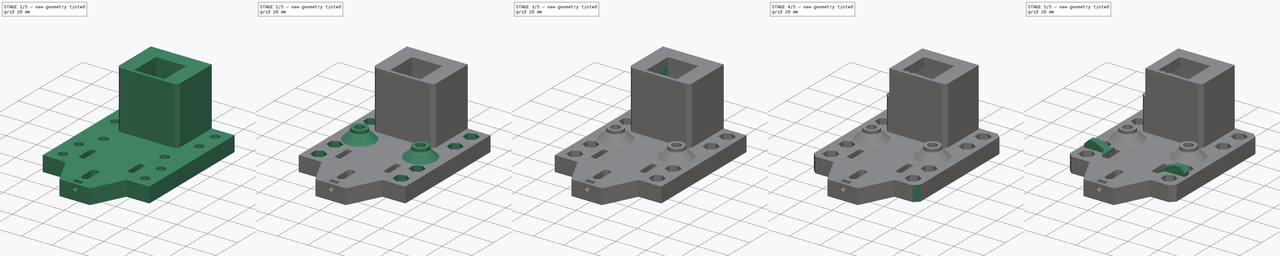
[diagram: build sequence overview — one tinted view per stage of 5, left to right]
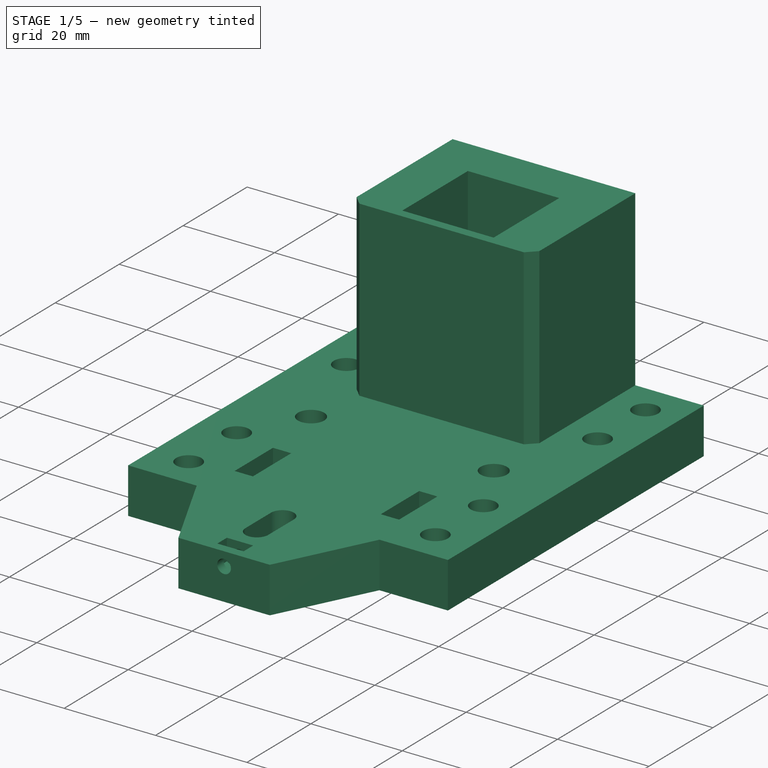
[diagram: stage 1 of 5 — iso view after this stage's code; geometry added in this stage tinted green]
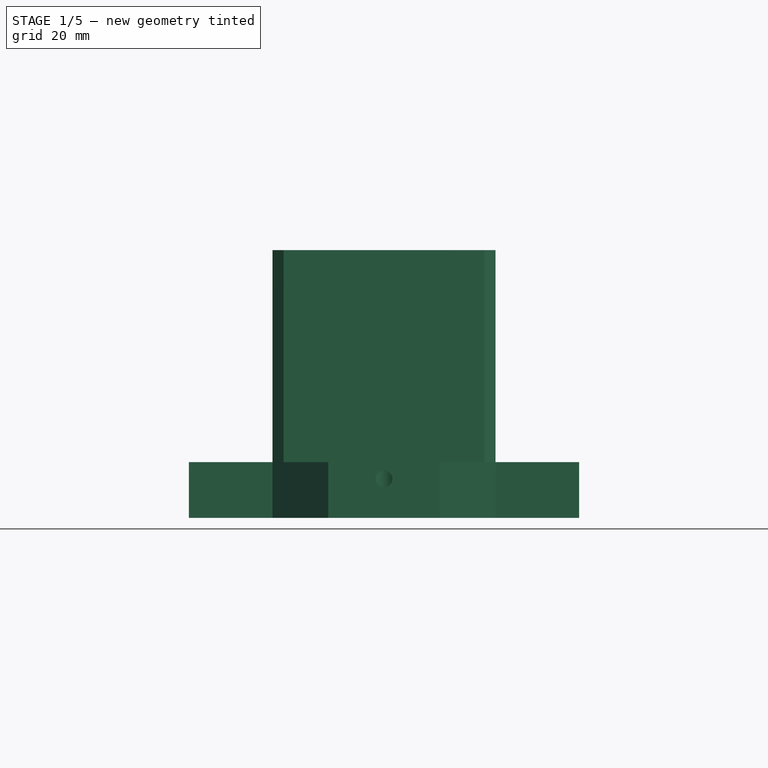
[diagram: stage 1 of 5 — front view after this stage's code; geometry added in this stage tinted green]
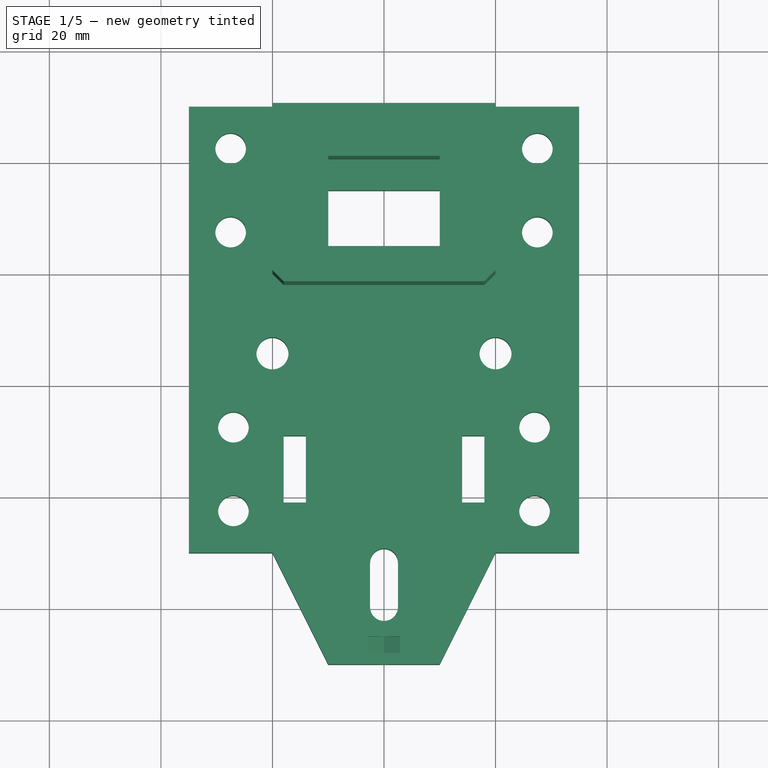
[diagram: stage 1 of 5 — top view after this stage's code; geometry added in this stage tinted green]
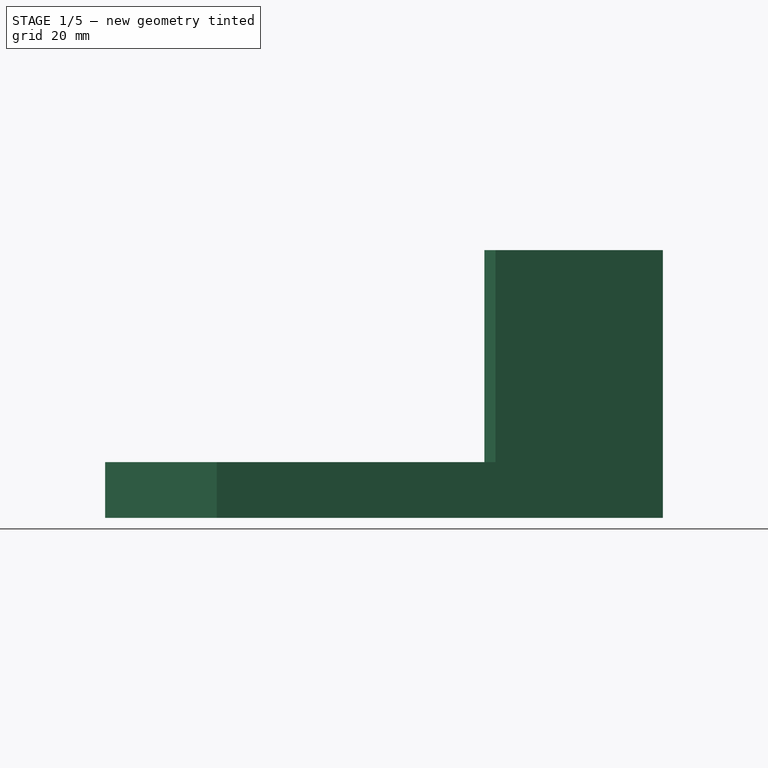
[diagram: stage 1 of 5 — right view after this stage's code; geometry added in this stage tinted green]
FCSTD DOCUMENT  (FreeCAD 0.19R24291 (Git))
Label: FDM-0005_y-gantry
License: All rights reserved
LicenseURL: http://en.wikipedia.org/wiki/All_rights_reserved
objects: Sketcher::SketchObject×13, PartDesign::Pocket×9, PartDesign::Plane×6, PartDesign::Chamfer×6, PartDesign::Pad×5, PartDesign::Fillet×2, Part::Part2DObjectPython×1, PartDesign::Body×1
note: 65 computed .brp shape members not serialized (recipe doc carries the construction recipe); baked Part::Feature solids carry a one-line shape summary decoded from their .brp

FEATURE [Sketcher::SketchObject] Sketch
  FullyConstrained = true
  MapMode = 5
  Support = -> [XY_Plane]
  sketch-geometry (47):
    g0: LineSegment StartX=-10 StartY=-70 StartZ=0 EndX=10 EndY=-70 EndZ=0
    g1: LineSegment StartX=35 StartY=-50 StartZ=0 EndX=35 EndY=30 EndZ=0
    g2: LineSegment StartX=35 StartY=30 StartZ=0 EndX=-35 EndY=30 EndZ=0
    g3: LineSegment StartX=-35 StartY=30 StartZ=0 EndX=-35 EndY=-50 EndZ=0
    g4: LineSegment StartX=-20 StartY=-14.25 StartZ=0 EndX=20 EndY=-14.25 EndZ=0
    g5: LineSegment StartX=0 StartY=0 StartZ=0 EndX=0 EndY=-70 EndZ=0
    g6: Circle CenterX=-20 CenterY=-14.25 CenterZ=0 NormalX=0 NormalY=0 NormalZ=1 AngleXU=0 Radius=2.875
    g7: Circle CenterX=20 CenterY=-14.25 CenterZ=0 NormalX=0 NormalY=0 NormalZ=1 AngleXU=0 Radius=2.875
    g8: Circle CenterX=-20 CenterY=-14.25 CenterZ=0 NormalX=0 NormalY=0 NormalZ=1 AngleXU=0 Radius=12.5
    g9: Circle CenterX=20 CenterY=-14.25 CenterZ=0 NormalX=0 NormalY=0 NormalZ=1 AngleXU=0 Radius=12.5
    g10: ArcOfCircle CenterX=0 CenterY=-51.75 CenterZ=0 NormalX=0 NormalY=0 NormalZ=1 AngleXU=0 Radius=2.5 StartAngle=6.28319 EndAngle=9.42478
    g11: ArcOfCircle CenterX=-1.7e-15 CenterY=-59.75 CenterZ=0 NormalX=0 NormalY=0 NormalZ=1 AngleXU=0 Radius=2.5 StartAngle=3.14159 EndAngle=6.28319
    g12: LineSegment StartX=-2.5 StartY=-51.75 StartZ=0 EndX=-2.5 EndY=-59.75 EndZ=0
    g13: LineSegment StartX=2.5 StartY=-51.75 StartZ=0 EndX=2.5 EndY=-59.75 EndZ=0
    g14: LineSegment StartX=-2.5 StartY=-55.75 StartZ=0 EndX=2.5 EndY=-55.75 EndZ=0
    g15: Circle CenterX=0 CenterY=-55.75 CenterZ=0 NormalX=0 NormalY=0 NormalZ=1 AngleXU=0 Radius=12.5
    g16: LineSegment StartX=-20 StartY=-50 StartZ=0 EndX=-10 EndY=-70 EndZ=0
    g17: LineSegment StartX=10 StartY=-70 StartZ=0 EndX=20 EndY=-50 EndZ=0
    g18: LineSegment StartX=-20 StartY=-50 StartZ=0 EndX=-35 EndY=-50 EndZ=0
    g19: LineSegment StartX=-27 StartY=-27.5 StartZ=0 EndX=-27 EndY=-42.5 EndZ=0
    g20: LineSegment StartX=-27 StartY=-35 StartZ=0 EndX=0 EndY=-35 EndZ=0
    g21: GeomPoint X=0 Y=-14.25 Z=0
    g22: Circle CenterX=-27 CenterY=-27.5 CenterZ=0 NormalX=0 NormalY=0 NormalZ=1 AngleXU=0 Radius=2.75
    g23: Circle CenterX=-27 CenterY=-42.5 CenterZ=0 NormalX=0 NormalY=0 NormalZ=1 AngleXU=0 Radius=2.75
    g24: LineSegment StartX=-18 StartY=-29 StartZ=0 EndX=-14 EndY=-29 EndZ=0
    g25: LineSegment StartX=-14 StartY=-29 StartZ=0 EndX=-14 EndY=-41 EndZ=0
    g26: LineSegment StartX=-14 StartY=-41 StartZ=0 EndX=-18 EndY=-41 EndZ=0
    g27: LineSegment StartX=-18 StartY=-41 StartZ=0 EndX=-18 EndY=-29 EndZ=0
    g28: LineSegment StartX=20 StartY=-50 StartZ=0 EndX=35 EndY=-50 EndZ=0
    g29: LineSegment StartX=18 StartY=-29 StartZ=0 EndX=14 EndY=-29 EndZ=0
    g30: LineSegment StartX=14 StartY=-29 StartZ=0 EndX=14 EndY=-41 EndZ=0
    g31: LineSegment StartX=14 StartY=-41 StartZ=0 EndX=18 EndY=-41 EndZ=0
    g32: Circle CenterX=27 CenterY=-42.5 CenterZ=0 NormalX=0 NormalY=0 NormalZ=1 AngleXU=0 Radius=2.75
    g33: Circle CenterX=27 CenterY=-27.5 CenterZ=0 NormalX=0 NormalY=0 NormalZ=1 AngleXU=0 Radius=2.75
    g34: LineSegment StartX=18 StartY=-41 StartZ=0 EndX=18 EndY=-29 EndZ=0
    g35: LineSegment StartX=27 StartY=-27.5 StartZ=0 EndX=27 EndY=-42.5 EndZ=0
    g36: LineSegment StartX=0 StartY=-35 StartZ=0 EndX=27 EndY=-35 EndZ=0
    g37: LineSegment StartX=-27.5 StartY=0 StartZ=0 EndX=-27.5 EndY=30 EndZ=0
    g38: LineSegment StartX=27.5 StartY=0 StartZ=0 EndX=27.5 EndY=30 EndZ=0
    g39: Circle CenterX=-27.5 CenterY=22.5 CenterZ=0 NormalX=0 NormalY=0 NormalZ=1 AngleXU=0 Radius=2.75
    g40: Circle CenterX=-27.5 CenterY=7.5 CenterZ=0 NormalX=0 NormalY=0 NormalZ=1 AngleXU=0 Radius=2.75
    g41: Circle CenterX=27.5 CenterY=22.5 CenterZ=0 NormalX=0 NormalY=0 NormalZ=1 AngleXU=0 Radius=2.75
    g42: Circle CenterX=27.5 CenterY=7.5 CenterZ=0 NormalX=0 NormalY=0 NormalZ=1 AngleXU=0 Radius=2.75
    g43: LineSegment StartX=-10 StartY=5 StartZ=0 EndX=10 EndY=5 EndZ=0
    g44: LineSegment StartX=10 StartY=5 StartZ=0 EndX=10 EndY=15 EndZ=0
    g45: LineSegment StartX=10 StartY=15 StartZ=0 EndX=-10 EndY=15 EndZ=0
    g46: LineSegment StartX=-10 StartY=15 StartZ=0 EndX=-10 EndY=5 EndZ=0
  constraints (131):
    c: Coincident(g1,g2)
    c: Coincident(g2,g3)
    c: Vertical(g1)
    c: Vertical(g3)
    c: Symmetric(g2,g1,g-2)
    c: Distance(g2) = 70
    c: Distance(g-1,g2) = 30
    c: Distance(g-1,g0) = 70
    c: Coincident(g5,g-1)
    c: PointOnObject(g5,g0)
    c: Coincident(g6,g4)
    c: Coincident(g7,g4)
    c: Coincident(g8,g6)
    c: Coincident(g9,g7)
    c: Diameter(g8) = 25
    c: Diameter(g9) = 25
    c: Diameter(g6) = 5.75
    c: Diameter(g7) = 5.75
    c: Coincident(g12,g10)
    c: Coincident(g12,g11)
    c: Vertical(g12)
    c: Coincident(g13,g10)
    c: Coincident(g13,g11)
    c: Vertical(g13)
    c: PointOnObject(g14,g12)
    c: PointOnObject(g14,g13)
    c: Symmetric(g10,g11,g14)
    c: Tangent(g12,g10)
    c: Tangent(g13,g10)
    c: Tangent(g11,g12)
    c: Tangent(g11,g13)
    c: Diameter(g10) = 5
    c: Distance(g13) = 8
    c: PointOnObject(g10,g5)
    c: Diameter(g15) = 25
    c: PointOnObject(g15,g5)
    c: Coincident(g0,g16)
    c: Coincident(g0,g17)
    c: DistanceX(g0,g0) = 20
    c: Symmetric(g0,g0,g5)
    c: Perpendicular(g4,g5)
    c: PointOnObject(g15,g14)
    c: Distance(g15,g4) = 41.5
    c: Distance(g-1,g4) = 14.25
    c: DistanceX(g4,g4) = 40
    c: Symmetric(g6,g7,g-2)
    c: Horizontal(g18)
    c: Coincident(g16,g18)
    c: Coincident(g18,g3)
    c: Vertical(g19)
    c: PointOnObject(g20,g19)
    c: PointOnObject(g20,g5)
    c: Symmetric(g19,g19,g20)
    c: Distance(g19) = 15
    c: PointOnObject(g21,g4)
    c: Symmetric(g21,g15,g20)
    c: DistanceX(g20,g20) = 27
    c: Coincident(g22,g19)
    c: Coincident(g23,g19)
    c: Coincident(g24,g25)
    c: Coincident(g25,g26)
    c: Coincident(g26,g27)
    c: Coincident(g27,g24)
    c: Horizontal(g24)
    c: Horizontal(g26)
    c: Vertical(g25)
    c: Distance(g26) = 4
    c: Distance(g27) = 12
    c: Symmetric(g24,g26,g20)
    c: Distance(g24,g3) = 17
    c: Diameter(g22) = 5.5
    c: Diameter(g23) = 5.5
    c: Distance(g-1,g18) = 50
    c: DistanceX(g16,g-1) = 20
    c: Horizontal(g28)
    c: Coincident(g17,g28)
    c: Coincident(g28,g1)
    c: PointOnObject(g17,g18)
    c: DistanceX(g-1,g17) = 20
    c: Coincident(g29,g30)
    c: Coincident(g30,g31)
    c: Horizontal(g29)
    c: Horizontal(g31)
    c: Vertical(g30)
    c: Distance(g31) = 4
    c: Diameter(g33) = 5.5
    c: Diameter(g32) = 5.5
    c: Distance(g34) = 12
    c: Coincident(g35,g33)
    c: Coincident(g35,g32)
    c: Coincident(g36,g20)
    c: PointOnObject(g36,g35)
    c: Symmetric(g33,g32,g36)
    c: Distance(g20,g35) = 27
    c: Distance(g29,g1) = 17
    c: Distance(g35) = 15
    c: Symmetric(g30,g29,g36)
    c: Coincident(g34,g29)
    c: Coincident(g31,g34)
    c: Vertical(g34)
    c: PointOnObject(g37,g-1)
    c: PointOnObject(g37,g2)
    c: Vertical(g37)
    c: PointOnObject(g38,g-1)
    c: PointOnObject(g38,g2)
    c: Vertical(g38)
    c: Distance(g37,g3) = 7.5
    c: Distance(g38,g1) = 7.5
    c: PointOnObject(g39,g37)
    c: PointOnObject(g40,g37)
    c: PointOnObject(g41,g38)
    c: PointOnObject(g42,g38)
    c: Diameter(g39) = 5.5
    c: Diameter(g40) = 5.5
    c: Diameter(g41) = 5.5
    c: Diameter(g42) = 5.5
    c: Distance(g39,g2) = 7.5
    c: Distance(g40,g37) = 7.5
    c: Distance(g42,g38) = 7.5
    c: Distance(g41,g2) = 7.5
    c: Coincident(g43,g44)
    c: Coincident(g44,g45)
    c: Coincident(g45,g46)
    c: Coincident(g46,g43)
    c: Horizontal(g43)
    c: Vertical(g44)
    c: Vertical(g46)
    c: Distance(g45) = 20
    c: Distance(g44) = 10
    c: Symmetric(g45,g44,g-2)
    c: Distance(g-1,g43) = 5
FEATURE [PartDesign::Pad] Pad
  AllowMultiFace = false
  Direction = (1,1,1)
  Length = 10
  Length2 = 100
  Profile = -> Sketch
  Type = 0
FEATURE [PartDesign::Plane] DatumPlane
  Length = 86.7332
  MapMode = 5
  Placement = pos=(0,0,10) rot=(0,0,1;0rad)
  ResizeMode = 0
  Support = -> [Pad]
  Width = 116.733
FEATURE [Sketcher::SketchObject] Sketch001
  FullyConstrained = true
  MapMode = 5
  Placement = pos=(0,0,10) rot=(0,0,1;0rad)
  Support = -> [DatumPlane]
  sketch-geometry (10):
    g0: LineSegment StartX=-10 StartY=0 StartZ=0 EndX=-10 EndY=20.5 EndZ=0
    g1: LineSegment StartX=-10 StartY=20.5 StartZ=0 EndX=10 EndY=20.5 EndZ=0
    g2: LineSegment StartX=10 StartY=20.5 StartZ=0 EndX=10 EndY=0 EndZ=0
    g3: LineSegment StartX=20 StartY=0 StartZ=0 EndX=20 EndY=30 EndZ=0
    g4: LineSegment StartX=20 StartY=30 StartZ=0 EndX=-20 EndY=30 EndZ=0
    g5: LineSegment StartX=-20 StartY=30 StartZ=0 EndX=-20 EndY=0 EndZ=0
    g6: LineSegment StartX=-20 StartY=0 StartZ=0 EndX=-18 EndY=-2 EndZ=0
    g7: LineSegment StartX=-18 StartY=-2 StartZ=0 EndX=18 EndY=-2 EndZ=0
    g8: LineSegment StartX=18 StartY=-2 StartZ=0 EndX=20 EndY=0 EndZ=0
    g9: LineSegment StartX=-10 StartY=0 StartZ=0 EndX=10 EndY=0 EndZ=0
  constraints (30):
    c: PointOnObject(g0,g-1)
    c: Vertical(g0)
    c: Coincident(g0,g1)
    c: Horizontal(g1)
    c: Coincident(g1,g2)
    c: PointOnObject(g2,g-1)
    c: Vertical(g2)
    c: PointOnObject(g3,g-1)
    c: Vertical(g3)
    c: Coincident(g3,g4)
    c: Horizontal(g4)
    c: Coincident(g4,g5)
    c: PointOnObject(g5,g-1)
    c: Vertical(g5)
    c: Distance(g-1,g4) = 30
    c: Distance(g-1,g1) = 20.5
    c: Distance(g-1,g3) = 20
    c: Distance(g5,g-1) = 20
    c: Distance(g-1,g2) = 10
    c: Distance(g-1,g0) = 10
    c: Coincident(g5,g6)
    c: Coincident(g6,g7)
    c: Horizontal(g7)
    c: Coincident(g7,g8)
    c: Coincident(g9,g0)
    c: Coincident(g9,g2)
    c: Angle(g6,g5) = 2.35619
    c: Angle(g3,g8) = 2.35619
    c: DistanceY(g6,g0) = 2
    c: Coincident(g8,g3)
FEATURE [PartDesign::Pad] Pad001
  AllowMultiFace = false
  BaseFeature = -> Pad
  Direction = (1,1,1)
  Length = 38
  Length2 = 100
  Profile = -> Sketch001
  Type = 0
FEATURE [Sketcher::SketchObject] Sketch002
  FullyConstrained = true
  MapMode = 5
  Placement = pos=(0,-70,0) rot=(1,0,0;1.5708rad)
  Support = -> [Pad001]
  sketch-geometry (1):
    g0: Circle CenterX=0 CenterY=7 CenterZ=0 NormalX=0 NormalY=0 NormalZ=1 AngleXU=0 Radius=1.5
  constraints (3):
    c: PointOnObject(g0,g-2)
    c: Diameter(g0) = 3
    c: Distance(g0,g-1) = 7
FEATURE [PartDesign::Pocket] Pocket
  AllowMultiFace = false
  BaseFeature = -> Pad001
  Length = 10
  Length2 = 100
  Profile = -> Sketch002
  Type = 0
FEATURE [PartDesign::Plane] DatumPlane001
  AttachmentOffset = pos=(0,0,-2) rot=(0,0,1;0rad)
  Length = 84.2969
  MapMode = 5
  Placement = pos=(0,-68,-4e-16) rot=(1,0,0;1.5708rad)
  ResizeMode = 0
  Support = -> [Pocket]
  Width = 87.2969
FEATURE [Sketcher::SketchObject] Sketch003
  FullyConstrained = true
  MapMode = 5
  Placement = pos=(0,-68,-4e-16) rot=(1,0,0;1.5708rad)
  Support = -> [DatumPlane001]
  sketch-geometry (10):
    g0: LineSegment StartX=3.42e-14 StartY=3.68024 StartZ=0 EndX=2.875 EndY=5.34012 EndZ=0
    g1: LineSegment StartX=2.875 StartY=5.34012 StartZ=0 EndX=2.875 EndY=8.65988 EndZ=0
    g2: LineSegment StartX=2.875 StartY=8.65988 StartZ=0 EndX=-3.6e-15 EndY=10.3198 EndZ=0
    g3: LineSegment StartX=-3.6e-15 StartY=10.3198 StartZ=0 EndX=-2.875 EndY=8.65988 EndZ=0
    g4: LineSegment StartX=-2.875 StartY=8.65988 StartZ=0 EndX=-2.875 EndY=5.34012 EndZ=0
    g5: LineSegment StartX=-2.875 StartY=5.34012 StartZ=0 EndX=3.42e-14 EndY=3.68024 EndZ=0
    g6: Circle CenterX=0 CenterY=7 CenterZ=0 NormalX=0 NormalY=0 NormalZ=1 AngleXU=0 Radius=3.31976
    g7: LineSegment StartX=-2.875 StartY=8.65988 StartZ=0 EndX=-2.875 EndY=12 EndZ=0
    g8: LineSegment StartX=-2.875 StartY=12 StartZ=0 EndX=2.875 EndY=12 EndZ=0
    g9: LineSegment StartX=2.875 StartY=12 StartZ=0 EndX=2.875 EndY=8.65988 EndZ=0
  constraints (25):
    c: Coincident(g0,g1)
    c: Coincident(g1,g2)
    c: Coincident(g2,g3)
    c: Coincident(g3,g4)
    c: Coincident(g4,g5)
    c: Coincident(g5,g0)
    c: Equal(g0, g1-g5) x5
    c: PointOnObject(g0,g6)
    c: PointOnObject(g1,g6)
    c: PointOnObject(g2,g6)
    c: PointOnObject(g3,g6)
    c: PointOnObject(g4,g6)
    c: PointOnObject(g5,g6)
    c: Vertical(g1)
    c: DistanceX(g4,g0) = 5.75
    c: DistanceY(g-1,g6) = 7
    c: Coincident(g3,g7)
    c: Vertical(g7)
    c: Coincident(g7,g8)
    c: Horizontal(g8)
    c: Coincident(g8,g9)
    c: Coincident(g9,g1)
    c: Vertical(g9)
    c: DistanceY(g-1,g8) = 12
    c: PointOnObject(g6,g-2)
FEATURE [PartDesign::Pocket] Pocket001
  AllowMultiFace = false
  BaseFeature = -> Pocket
  Length = 3
  Length2 = 100
  Profile = -> Sketch003
  Type = 0
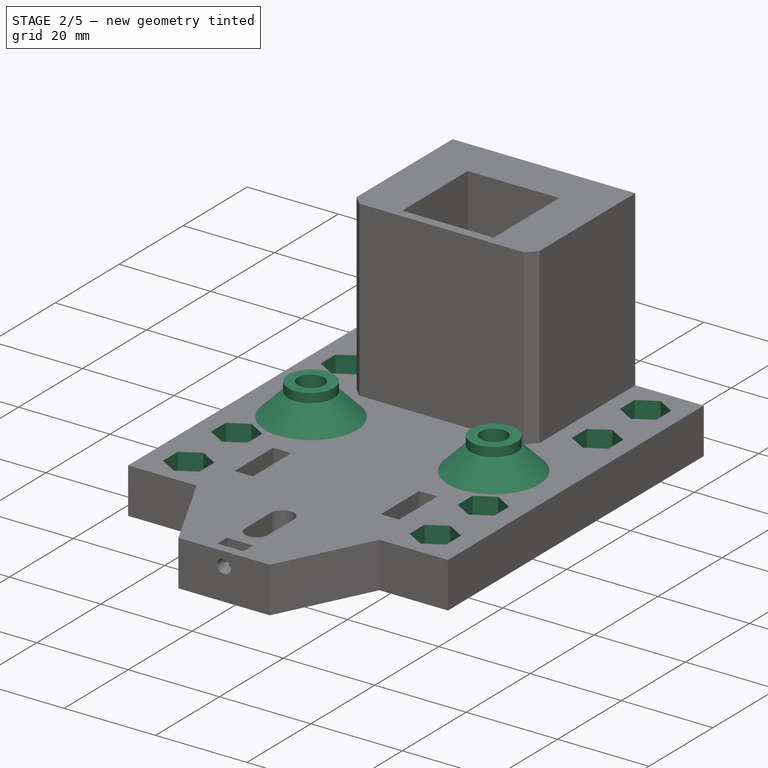
[diagram: stage 2 of 5 — iso view after this stage's code; geometry added in this stage tinted green]
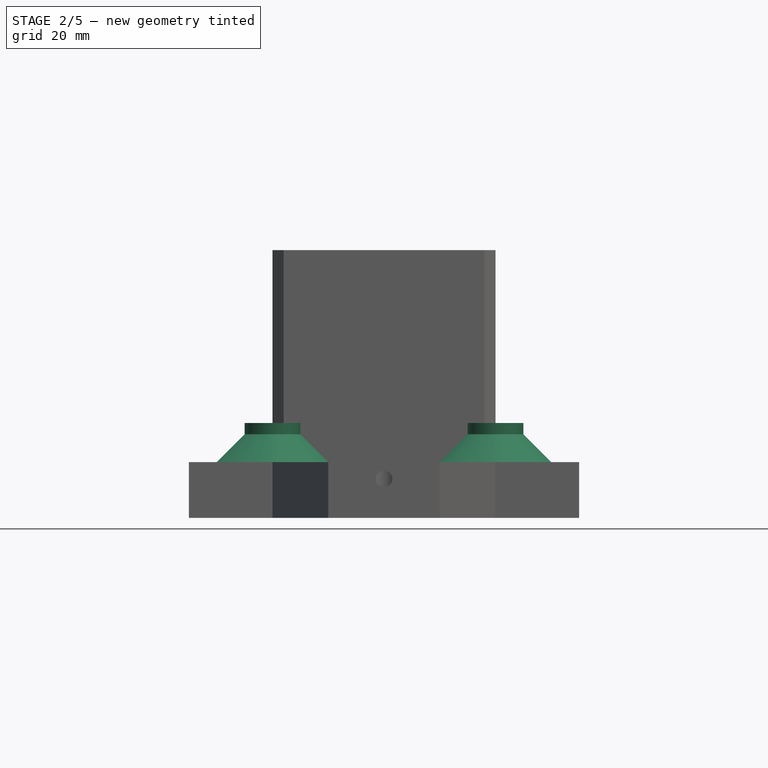
[diagram: stage 2 of 5 — front view after this stage's code; geometry added in this stage tinted green]
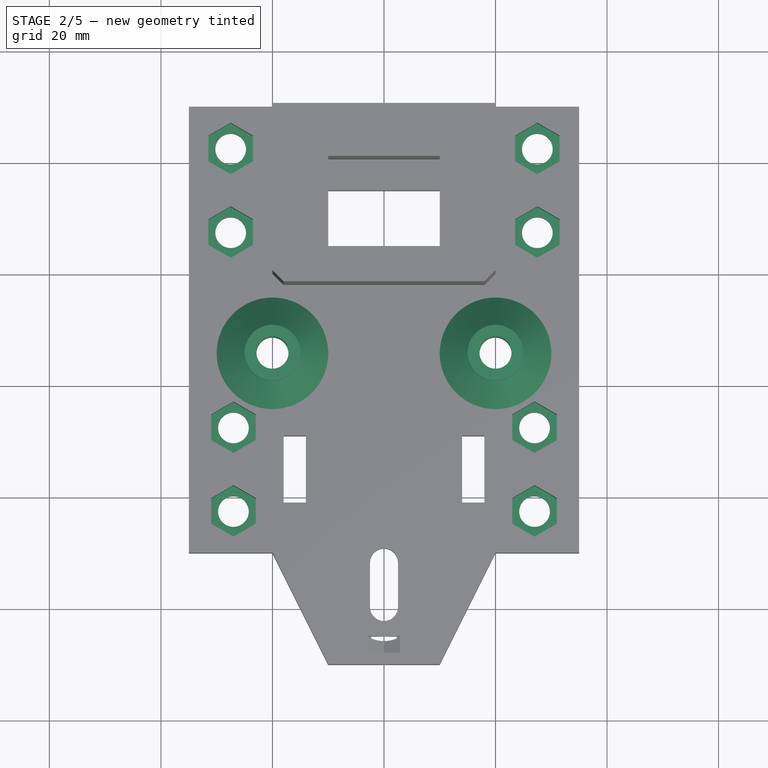
[diagram: stage 2 of 5 — top view after this stage's code; geometry added in this stage tinted green]
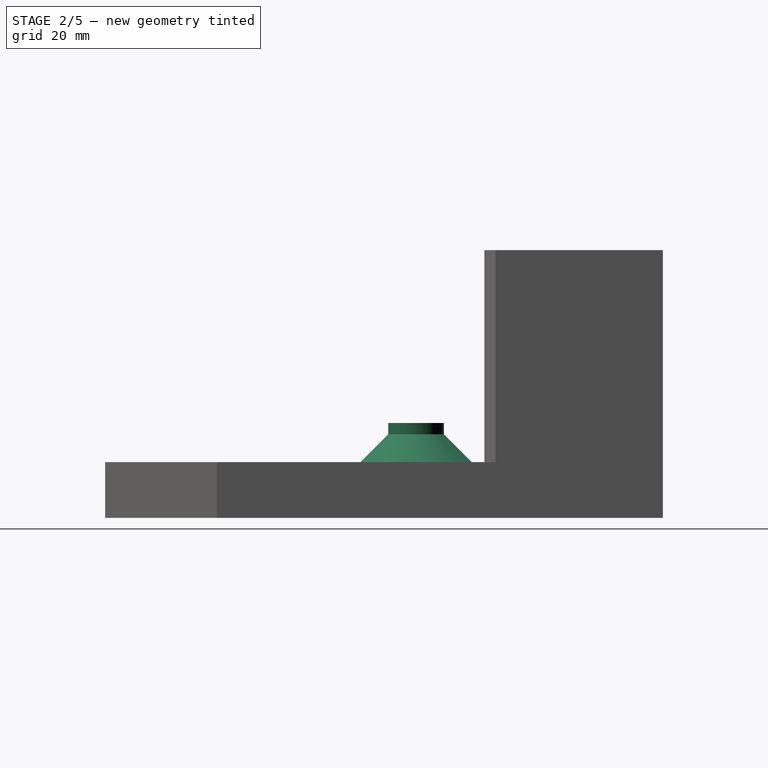
[diagram: stage 2 of 5 — right view after this stage's code; geometry added in this stage tinted green]
FEATURE [PartDesign::Plane] DatumPlane002
  Length = 86.7332
  MapMode = 5
  Placement = pos=(0,0,10) rot=(0,0,1;0rad)
  ResizeMode = 0
  Support = -> [Pocket001]
  Width = 116.733
FEATURE [Sketcher::SketchObject] Sketch004
  FullyConstrained = true
  MapMode = 5
  Placement = pos=(0,0,10) rot=(0,0,1;0rad)
  Support = -> [DatumPlane002]
  sketch-geometry (64):
    g0: LineSegment StartX=-27.5 StartY=17.8812 StartZ=0 EndX=-23.5 EndY=20.1906 EndZ=0
    g1: LineSegment StartX=-23.5 StartY=20.1906 StartZ=0 EndX=-23.5 EndY=24.8094 EndZ=0
    g2: LineSegment StartX=-23.5 StartY=24.8094 StartZ=0 EndX=-27.5 EndY=27.1188 EndZ=0
    g3: LineSegment StartX=-27.5 StartY=27.1188 StartZ=0 EndX=-31.5 EndY=24.8094 EndZ=0
    g4: LineSegment StartX=-31.5 StartY=24.8094 StartZ=0 EndX=-31.5 EndY=20.1906 EndZ=0
    g5: LineSegment StartX=-31.5 StartY=20.1906 StartZ=0 EndX=-27.5 EndY=17.8812 EndZ=0
    g6: Circle CenterX=-27.5 CenterY=22.5 CenterZ=0 NormalX=0 NormalY=0 NormalZ=1 AngleXU=0 Radius=4.6188
    g7: LineSegment StartX=27.5 StartY=17.8812 StartZ=0 EndX=31.5 EndY=20.1906 EndZ=0
    g8: LineSegment StartX=31.5 StartY=20.1906 StartZ=0 EndX=31.5 EndY=24.8094 EndZ=0
    g9: LineSegment StartX=31.5 StartY=24.8094 StartZ=0 EndX=27.5 EndY=27.1188 EndZ=0
    g10: LineSegment StartX=27.5 StartY=27.1188 StartZ=0 EndX=23.5 EndY=24.8094 EndZ=0
    g11: LineSegment StartX=23.5 StartY=24.8094 StartZ=0 EndX=23.5 EndY=20.1906 EndZ=0
    g12: LineSegment StartX=23.5 StartY=20.1906 StartZ=0 EndX=27.5 EndY=17.8812 EndZ=0
    g13: Circle CenterX=27.5 CenterY=22.5 CenterZ=0 NormalX=0 NormalY=0 NormalZ=1 AngleXU=0 Radius=4.6188
    g14: LineSegment StartX=27.5 StartY=2.8812 StartZ=0 EndX=31.5 EndY=5.1906 EndZ=0
    g15: LineSegment StartX=31.5 StartY=5.1906 StartZ=0 EndX=31.5 EndY=9.8094 EndZ=0
    g16: LineSegment StartX=31.5 StartY=9.8094 StartZ=0 EndX=27.5 EndY=12.1188 EndZ=0
    g17: LineSegment StartX=27.5 StartY=12.1188 StartZ=0 EndX=23.5 EndY=9.8094 EndZ=0
    g18: LineSegment StartX=23.5 StartY=9.8094 StartZ=0 EndX=23.5 EndY=5.1906 EndZ=0
    g19: LineSegment StartX=23.5 StartY=5.1906 StartZ=0 EndX=27.5 EndY=2.8812 EndZ=0
    g20: Circle CenterX=27.5 CenterY=7.5 CenterZ=0 NormalX=0 NormalY=0 NormalZ=1 AngleXU=0 Radius=4.6188
    g21: LineSegment StartX=-27 StartY=-32.1188 StartZ=0 EndX=-23 EndY=-29.8094 EndZ=0
    g22: LineSegment StartX=-23 StartY=-29.8094 StartZ=0 EndX=-23 EndY=-25.1906 EndZ=0
    g23: LineSegment StartX=-23 StartY=-25.1906 StartZ=0 EndX=-27 EndY=-22.8812 EndZ=0
    g24: LineSegment StartX=-27 StartY=-22.8812 StartZ=0 EndX=-31 EndY=-25.1906 EndZ=0
    g25: LineSegment StartX=-31 StartY=-25.1906 StartZ=0 EndX=-31 EndY=-29.8094 EndZ=0
    g26: LineSegment StartX=-31 StartY=-29.8094 StartZ=0 EndX=-27 EndY=-32.1188 EndZ=0
    g27: Circle CenterX=-27 CenterY=-27.5 CenterZ=0 NormalX=0 NormalY=0 NormalZ=1 AngleXU=0 Radius=4.6188
    g28: LineSegment StartX=-27 StartY=-47.1188 StartZ=0 EndX=-23 EndY=-44.8094 EndZ=0
    g29: LineSegment StartX=-23 StartY=-44.8094 StartZ=0 EndX=-23 EndY=-40.1906 EndZ=0
    g30: LineSegment StartX=-23 StartY=-40.1906 StartZ=0 EndX=-27 EndY=-37.8812 EndZ=0
    g31: LineSegment StartX=-27 StartY=-37.8812 StartZ=0 EndX=-31 EndY=-40.1906 EndZ=0
    g32: LineSegment StartX=-31 StartY=-40.1906 StartZ=0 EndX=-31 EndY=-44.8094 EndZ=0
    g33: LineSegment StartX=-31 StartY=-44.8094 StartZ=0 EndX=-27 EndY=-47.1188 EndZ=0
    g34: Circle CenterX=-27 CenterY=-42.5 CenterZ=0 NormalX=0 NormalY=0 NormalZ=1 AngleXU=0 Radius=4.6188
    g35: LineSegment StartX=27 StartY=-32.1188 StartZ=0 EndX=31 EndY=-29.8094 EndZ=0
    g36: LineSegment StartX=31 StartY=-29.8094 StartZ=0 EndX=31 EndY=-25.1906 EndZ=0
    g37: LineSegment StartX=31 StartY=-25.1906 StartZ=0 EndX=27 EndY=-22.8812 EndZ=0
    g38: LineSegment StartX=27 StartY=-22.8812 StartZ=0 EndX=23 EndY=-25.1906 EndZ=0
    g39: LineSegment StartX=23 StartY=-25.1906 StartZ=0 EndX=23 EndY=-29.8094 EndZ=0
    g40: LineSegment StartX=23 StartY=-29.8094 StartZ=0 EndX=27 EndY=-32.1188 EndZ=0
    g41: Circle CenterX=27 CenterY=-27.5 CenterZ=0 NormalX=0 NormalY=0 NormalZ=1 AngleXU=0 Radius=4.6188
    g42: LineSegment StartX=-23.5 StartY=5.1906 StartZ=0 EndX=-23.5 EndY=9.8094 EndZ=0
    g43: LineSegment StartX=-23.5 StartY=9.8094 StartZ=0 EndX=-27.5 EndY=12.1188 EndZ=0
    g44: LineSegment StartX=-27.5 StartY=12.1188 StartZ=0 EndX=-31.5 EndY=9.8094 EndZ=0
    g45: LineSegment StartX=-31.5 StartY=9.8094 StartZ=0 EndX=-31.5 EndY=5.1906 EndZ=0
    g46: LineSegment StartX=-31.5 StartY=5.1906 StartZ=0 EndX=-27.5 EndY=2.8812 EndZ=0
    g47: LineSegment StartX=-27.5 StartY=2.8812 StartZ=0 EndX=-23.5 EndY=5.1906 EndZ=0
    g48: Circle CenterX=-27.5 CenterY=7.5 CenterZ=0 NormalX=0 NormalY=0 NormalZ=1 AngleXU=0 Radius=4.6188
    g49: LineSegment StartX=31 StartY=-44.8094 StartZ=0 EndX=31 EndY=-40.1906 EndZ=0
    g50: LineSegment StartX=31 StartY=-40.1906 StartZ=0 EndX=27 EndY=-37.8812 EndZ=0
    g51: LineSegment StartX=27 StartY=-37.8812 StartZ=0 EndX=23 EndY=-40.1906 EndZ=0
    g52: LineSegment StartX=23 StartY=-40.1906 StartZ=0 EndX=23 EndY=-44.8094 EndZ=0
    g53: LineSegment StartX=23 StartY=-44.8094 StartZ=0 EndX=27 EndY=-47.1188 EndZ=0
    g54: LineSegment StartX=27 StartY=-47.1188 StartZ=0 EndX=31 EndY=-44.8094 EndZ=0
    g55: Circle CenterX=27 CenterY=-42.5 CenterZ=0 NormalX=0 NormalY=0 NormalZ=1 AngleXU=0 Radius=4.6188
    g56: LineSegment StartX=-27 StartY=-42.5 StartZ=0 EndX=27 EndY=-42.5 EndZ=0
    g57: LineSegment StartX=27 StartY=-42.5 StartZ=0 EndX=27 EndY=-27.5 EndZ=0
    g58: LineSegment StartX=27 StartY=-27.5 StartZ=0 EndX=-27 EndY=-27.5 EndZ=0
    g59: LineSegment StartX=-27 StartY=-27.5 StartZ=0 EndX=-27 EndY=-42.5 EndZ=0
    g60: LineSegment StartX=-27.5 StartY=22.5 StartZ=0 EndX=27.5 EndY=22.5 EndZ=0
    g61: LineSegment StartX=27.5 StartY=22.5 StartZ=0 EndX=27.5 EndY=7.5 EndZ=0
    g62: LineSegment StartX=27.5 StartY=7.5 StartZ=0 EndX=-27.5 EndY=7.5 EndZ=0
    g63: LineSegment StartX=-27.5 StartY=7.5 StartZ=0 EndX=-27.5 EndY=22.5 EndZ=0
  constraints (150):
    c: Coincident(g0,g1)
    c: Coincident(g1,g2)
    c: Coincident(g2,g3)
    c: Coincident(g3,g4)
    c: Coincident(g4,g5)
    c: Coincident(g5,g0)
    c: Equal(g0, g1-g5) x5
    c: PointOnObject(g0,g6)
    c: PointOnObject(g1,g6)
    c: PointOnObject(g2,g6)
    c: PointOnObject(g3,g6)
    c: PointOnObject(g4,g6)
    c: PointOnObject(g5,g6)
    c: Coincident(g7,g8)
    c: Coincident(g8,g9)
    c: Coincident(g9,g10)
    c: Coincident(g10,g11)
    c: Coincident(g11,g12)
    c: Coincident(g12,g7)
    c: Equal(g7, g8-g12) x5
    c: PointOnObject(g7,g13)
    c: PointOnObject(g8,g13)
    c: PointOnObject(g9,g13)
    c: PointOnObject(g10,g13)
    c: PointOnObject(g11,g13)
    c: PointOnObject(g12,g13)
    c: Coincident(g14,g15)
    c: Coincident(g15,g16)
    c: Coincident(g16,g17)
    c: Coincident(g17,g18)
    c: Coincident(g18,g19)
    c: Coincident(g19,g14)
    c: Equal(g14, g15-g19) x5
    c: PointOnObject(g14,g20)
    c: PointOnObject(g15,g20)
    c: PointOnObject(g16,g20)
    c: PointOnObject(g17,g20)
    c: PointOnObject(g18,g20)
    c: PointOnObject(g19,g20)
    c: Coincident(g21,g22)
    c: Coincident(g22,g23)
    c: Coincident(g23,g24)
    c: Coincident(g24,g25)
    c: Coincident(g25,g26)
    c: Coincident(g26,g21)
    c: Equal(g21, g22-g26) x5
    c: PointOnObject(g21,g27)
    c: PointOnObject(g22,g27)
    c: PointOnObject(g23,g27)
    c: PointOnObject(g24,g27)
    c: PointOnObject(g25,g27)
    c: PointOnObject(g26,g27)
    c: Coincident(g28,g29)
    c: Coincident(g29,g30)
    c: Coincident(g30,g31)
    c: Coincident(g31,g32)
    c: Coincident(g32,g33)
    c: Coincident(g33,g28)
    c: Equal(g28, g29-g33) x5
    c: PointOnObject(g28,g34)
    c: PointOnObject(g29,g34)
    c: PointOnObject(g30,g34)
    c: PointOnObject(g31,g34)
    c: PointOnObject(g32,g34)
    c: PointOnObject(g33,g34)
    c: Coincident(g35,g36)
    c: Coincident(g36,g37)
    c: Coincident(g37,g38)
    c: Coincident(g38,g39)
    c: Coincident(g39,g40)
    c: Coincident(g40,g35)
    c: Equal(g35, g36-g40) x5
    c: PointOnObject(g35,g41)
    c: PointOnObject(g36,g41)
    c: PointOnObject(g37,g41)
    c: PointOnObject(g38,g41)
    c: PointOnObject(g39,g41)
    c: PointOnObject(g40,g41)
    c: Vertical(g4)
    c: Vertical(g11)
    c: Vertical(g18)
    c: Vertical(g25)
    c: Vertical(g32)
    c: Vertical(g39)
    c: Distance(g3,g1) = 8
    c: Distance(g10,g8) = 8
    c: Distance(g17,g15) = 8
    c: Distance(g24,g22) = 8
    c: Distance(g31,g29) = 8
    c: Distance(g38,g36) = 8
    c: Coincident(g42,g43)
    c: Coincident(g43,g44)
    c: Coincident(g44,g45)
    c: Coincident(g45,g46)
    c: Coincident(g46,g47)
    c: Coincident(g47,g42)
    c: Equal(g42, g43-g47) x5
    c: PointOnObject(g42,g48)
    c: PointOnObject(g43,g48)
    c: PointOnObject(g44,g48)
    c: PointOnObject(g45,g48)
    c: PointOnObject(g46,g48)
    c: PointOnObject(g47,g48)
    c: Coincident(g49,g50)
    c: Coincident(g50,g51)
    c: Coincident(g51,g52)
    c: Coincident(g52,g53)
    c: Coincident(g53,g54)
    c: Coincident(g54,g49)
    c: Equal(g49, g50-g54) x5
    c: PointOnObject(g49,g55)
    c: PointOnObject(g50,g55)
    c: PointOnObject(g51,g55)
    c: PointOnObject(g52,g55)
    c: PointOnObject(g53,g55)
    c: PointOnObject(g54,g55)
    c: Coincident(g56,g57)
    c: Coincident(g57,g58)
    c: Coincident(g58,g59)
    c: Coincident(g59,g56)
    c: Horizontal(g58)
    c: Vertical(g57)
    c: Vertical(g59)
    c: Coincident(g56,g34)
    c: Coincident(g57,g41)
    c: Coincident(g55,g56)
    c: Vertical(g49)
    c: Coincident(g27,g58)
    c: Symmetric(g34,g55,g-2)
    c: DistanceY(g59,g59) = 15
    c: DistanceY(g27,g-1) = 27.5
    c: DistanceX(g58,g58) = 54
    c: DistanceX(g51,g49) = 8
    c: Vertical(g42)
    c: DistanceX(g44,g42) = 8
    c: Coincident(g60,g61)
    c: Coincident(g61,g62)
    c: Coincident(g62,g63)
    c: Coincident(g63,g60)
    c: Horizontal(g60)
    c: Vertical(g61)
    c: Vertical(g63)
    c: Coincident(g60,g6)
    c: Coincident(g61,g20)
    c: Coincident(g48,g62)
    c: Coincident(g13,g60)
    c: Symmetric(g48,g20,g-2)
    c: DistanceY(g-1,g48) = 7.5
    c: DistanceY(g63,g63) = 15
    c: DistanceX(g62,g62) = 55
FEATURE [Sketcher::SketchObject] Sketch006
  FullyConstrained = true
  MapMode = 5
  Placement = pos=(0,0,10) rot=(0,0,1;0rad)
  Support = -> [DatumPlane002]
  sketch-geometry (2):
    g0: Circle CenterX=20 CenterY=-14.25 CenterZ=0 NormalX=0 NormalY=0 NormalZ=1 AngleXU=0 Radius=5
    g1: Circle CenterX=20 CenterY=-14.25 CenterZ=0 NormalX=0 NormalY=0 NormalZ=1 AngleXU=0 Radius=2.875
  constraints (5):
    c: Coincident(g1,g0)
    c: Diameter(g0) = 10
    c: Diameter(g1) = 5.75
    c: DistanceX(g-1,g0) = 20
    c: DistanceY(g0,g-1) = 14.25
FEATURE [Sketcher::SketchObject] Sketch009
  FullyConstrained = true
  MapMode = 5
  Placement = pos=(-20,0,0) rot=(0.57735,-0.57735,-0.57735;2.0944rad)
  sketch-geometry (11):
    g0: Circle CenterX=-5.5 CenterY=45 CenterZ=0 NormalX=0 NormalY=0 NormalZ=1 AngleXU=0 Radius=1.375
    g1: Circle CenterX=-24.5 CenterY=45 CenterZ=0 NormalX=0 NormalY=0 NormalZ=1 AngleXU=0 Radius=1.375
    g2: GeomPoint X=-2.5 Y=48 Z=0
    g3: LineSegment StartX=-9 StartY=42 StartZ=0 EndX=-9 EndY=36 EndZ=0
    g4: LineSegment StartX=-9 StartY=36 StartZ=0 EndX=-21.5 EndY=36 EndZ=0
    g5: LineSegment StartX=-21.5 StartY=36 StartZ=0 EndX=-21.5 EndY=42 EndZ=0
    g6: LineSegment StartX=-32.5 StartY=46 StartZ=0 EndX=-27.5 EndY=46 EndZ=0
    g7: LineSegment StartX=-27.5 StartY=46 StartZ=0 EndX=-27.5 EndY=33 EndZ=0
    g8: LineSegment StartX=-27.5 StartY=33 StartZ=0 EndX=-32.5 EndY=33 EndZ=0
    g9: LineSegment StartX=-32.5 StartY=33 StartZ=0 EndX=-32.5 EndY=46 EndZ=0
    g10: LineSegment StartX=-21.5 StartY=42 StartZ=0 EndX=-9 EndY=42 EndZ=0
  constraints (32):
    c: DistanceX(g1,g2) = 22
    c: DistanceY(g1,g2) = 3
    c: DistanceY(g0,g2) = 3
    c: DistanceX(g0,g2) = 3
    c: Diameter(g1) = 2.75
    c: Diameter(g0) = 2.75
    c: Coincident(g3,g4)
    c: Coincident(g4,g5)
    c: Horizontal(g4)
    c: Vertical(g5)
    c: DistanceY(g4,g2) = 12
    c: Coincident(g6,g7)
    c: Coincident(g7,g8)
    c: Coincident(g8,g9)
    c: Coincident(g9,g6)
    c: Horizontal(g6)
    c: Horizontal(g8)
    c: Vertical(g7)
    c: Vertical(g9)
    c: DistanceX(g6,g2) = 25
    c: DistanceX(g6,g2) = 30
    c: DistanceY(g6,g2) = 2
    c: DistanceY(g7,g2) = 15
    c: Coincident(g5,g10)
    c: DistanceX(g2,g-1) = 2.5
    c: Vertical(g3)
    c: DistanceY(g-1,g2) = 48
    c: Equal(g5,g3)
    c: DistanceX(g4,g4) = 12.5
    c: Coincident(g10,g3)
    c: DistanceY(g-1,g3) = 42
    c: DistanceX(g3,g2) = 6.5
FEATURE [Sketcher::SketchObject] Sketch011
  FullyConstrained = true
  MapMode = 5
  Support = -> [XY_Plane]
  sketch-geometry (7):
    g0: Circle CenterX=-20 CenterY=-14.25 CenterZ=0 NormalX=0 NormalY=0 NormalZ=1 AngleXU=0 Radius=6
    g1: Circle CenterX=20 CenterY=-14.25 CenterZ=0 NormalX=0 NormalY=0 NormalZ=1 AngleXU=0 Radius=6
    g2: ArcOfCircle CenterX=0 CenterY=-51.75 CenterZ=0 NormalX=0 NormalY=0 NormalZ=1 AngleXU=0 Radius=6 StartAngle=6e-16 EndAngle=3.14159
    g3: ArcOfCircle CenterX=-1e-16 CenterY=-59.75 CenterZ=0 NormalX=0 NormalY=0 NormalZ=1 AngleXU=0 Radius=6 StartAngle=3.14159 EndAngle=6.28319
    g4: LineSegment StartX=-6 StartY=-51.75 StartZ=0 EndX=-6 EndY=-59.75 EndZ=0
    g5: LineSegment StartX=6 StartY=-51.75 StartZ=0 EndX=6 EndY=-59.75 EndZ=0
    g6: LineSegment StartX=-20 StartY=-14.25 StartZ=0 EndX=20 EndY=-14.25 EndZ=0
  constraints (18):
    c: Tangent(g2,g5)
    c: Tangent(g2,g4)
    c: Tangent(g4,g3)
    c: Tangent(g5,g3)
    c: Vertical(g4)
    c: Equal(g2,g3)
    c: PointOnObject(g2,g-2)
    c: Diameter(g1) = 12
    c: Diameter(g0) = 12
    c: Diameter(g2) = 12
    c: DistanceY(g3,g2) = 8
    c: DistanceY(g2,g-1) = 51.75
    c: Coincident(g6,g0)
    c: Coincident(g6,g1)
    c: Horizontal(g6)
    c: DistanceY(g0,g-1) = 14.25
    c: DistanceX(g6,g6) = 40
    c: DistanceX(g-1,g1) = 20
FEATURE [PartDesign::Pocket] Pocket007
  AllowMultiFace = false
  BaseFeature = -> Pocket001
  Length = 5
  Length2 = 100
  Profile = -> Sketch011
  Reversed = true
  Type = 0
FEATURE [PartDesign::Pocket] Pocket002
  AllowMultiFace = false
  BaseFeature = -> Pocket007
  Length = 7
  Length2 = 100
  Profile = -> Sketch004
  Type = 0
FEATURE [Sketcher::SketchObject] Sketch005
  ExternalGeometry = -> [Pocket002]
  FullyConstrained = false
  MapMode = 5
  Placement = pos=(0,0,10) rot=(0,0,1;0rad)
  Support = -> [DatumPlane002]
  sketch-geometry (2):
    g0: Circle CenterX=-20 CenterY=-14.25 CenterZ=0 NormalX=0 NormalY=0 NormalZ=1 AngleXU=0 Radius=5
    g1: Circle CenterX=-20 CenterY=-14.25 CenterZ=0 NormalX=0 NormalY=0 NormalZ=1 AngleXU=0 Radius=2.875
  constraints (3):
    c: Radius(g0) = 5
    c: Coincident(g1,g0)
    c: Diameter(g1) = 5.75
FEATURE [PartDesign::Pad] Pad002
  AllowMultiFace = false
  BaseFeature = -> Pocket002
  Direction = (1,1,1)
  Length = 7
  Length2 = 100
  Profile = -> Sketch005
  Type = 0
FEATURE [PartDesign::Pad] Pad003
  AllowMultiFace = false
  BaseFeature = -> Pad002
  Direction = (1,1,1)
  Length = 7
  Length2 = 100
  Profile = -> Sketch006
  Type = 0
FEATURE [PartDesign::Chamfer] Chamfer
  Angle = 45
  Base = -> Pad003 [Edge94,Edge107]
  BaseFeature = -> Pad003
  ChamferType = 0
  FlipDirection = false
  Size = 5
  Size2 = 1
  SupportTransform = false
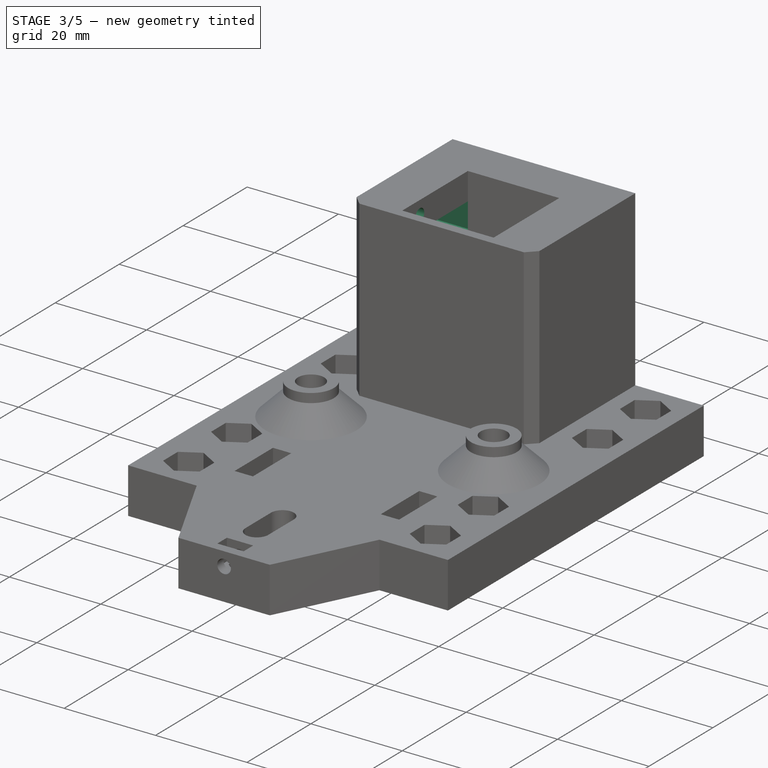
[diagram: stage 3 of 5 — iso view after this stage's code; geometry added in this stage tinted green]
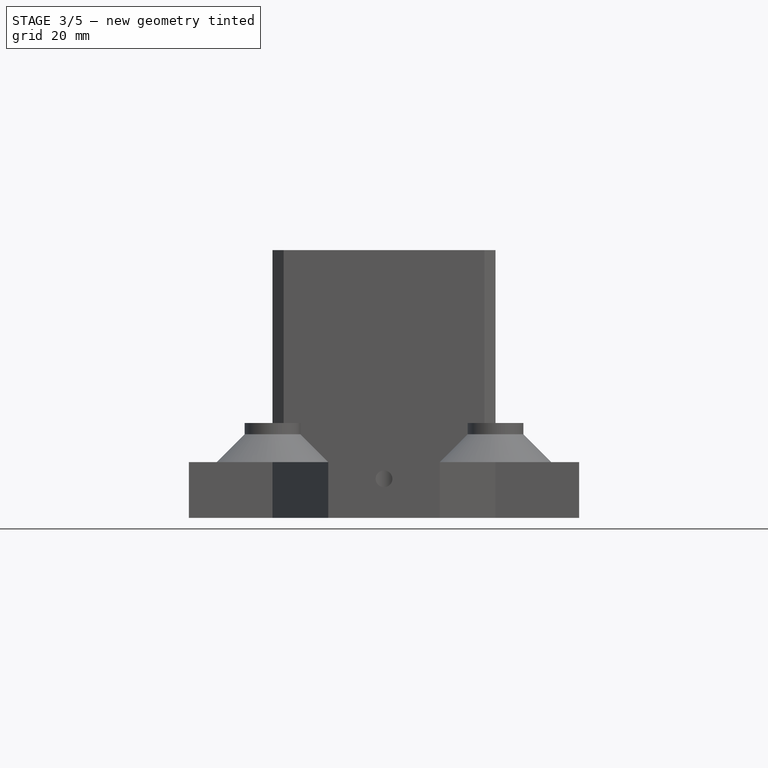
[diagram: stage 3 of 5 — front view after this stage's code; geometry added in this stage tinted green]
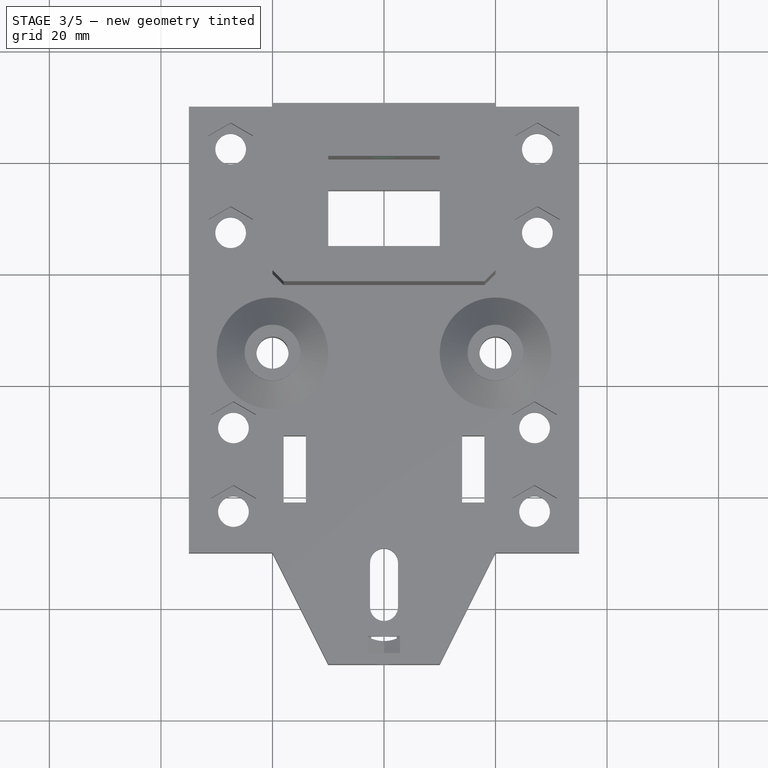
[diagram: stage 3 of 5 — top view after this stage's code; geometry added in this stage tinted green]
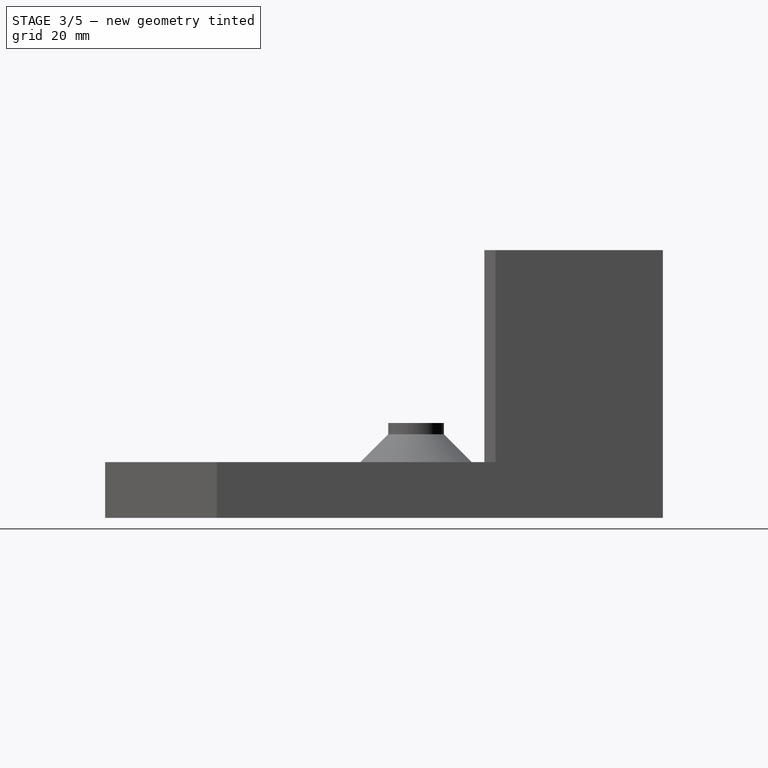
[diagram: stage 3 of 5 — right view after this stage's code; geometry added in this stage tinted green]
FEATURE [PartDesign::Fillet] Fillet
  Base = -> Chamfer [Edge145,Edge172]
  BaseFeature = -> Chamfer
  Radius = 4
  SupportTransform = false
FEATURE [PartDesign::Plane] DatumPlane003
  Length = 84.2969
  MapMode = 5
  Placement = pos=(0,30,0) rot=(0,0.707107,0.707107;3.14159rad)
  ResizeMode = 0
  Support = -> [Fillet]
  Width = 87.2969
FEATURE [Sketcher::SketchObject] Sketch007
  FullyConstrained = true
  MapMode = 5
  Placement = pos=(0,30,0) rot=(0,0.707107,0.707107;3.14159rad)
  Support = -> [DatumPlane003]
  sketch-geometry (1):
    g0: Circle CenterX=0 CenterY=30 CenterZ=0 NormalX=0 NormalY=0 NormalZ=1 AngleXU=0 Radius=6
  constraints (3):
    c: PointOnObject(g0,g-2)
    c: Diameter(g0) = 12
    c: Distance(g0,g-1) = 30
FEATURE [PartDesign::Pocket] Pocket003
  AllowMultiFace = false
  BaseFeature = -> Fillet
  Length = 5
  Length2 = 100
  Profile = -> Sketch007
  Type = 0
FEATURE [Sketcher::SketchObject] Sketch008
  FullyConstrained = true
  MapMode = 5
  Placement = pos=(0,30,0) rot=(0,0.707107,0.707107;3.14159rad)
  Support = -> [DatumPlane003]
  sketch-geometry (1):
    g0: Circle CenterX=0 CenterY=30 CenterZ=0 NormalX=0 NormalY=0 NormalZ=1 AngleXU=0 Radius=2.75
  constraints (3):
    c: PointOnObject(g0,g-2)
    c: Diameter(g0) = 5.5
    c: Distance(g0,g-1) = 30
FEATURE [PartDesign::Pocket] Pocket004
  AllowMultiFace = false
  BaseFeature = -> Pocket003
  Length = 10
  Length2 = 100
  Profile = -> Sketch008
  Type = 0
FEATURE [PartDesign::Pocket] Pocket005
  AllowMultiFace = false
  BaseFeature = -> Pocket004
  Length = 10
  Length2 = 100
  Profile = -> Sketch009
  Refine = true
  Type = 0
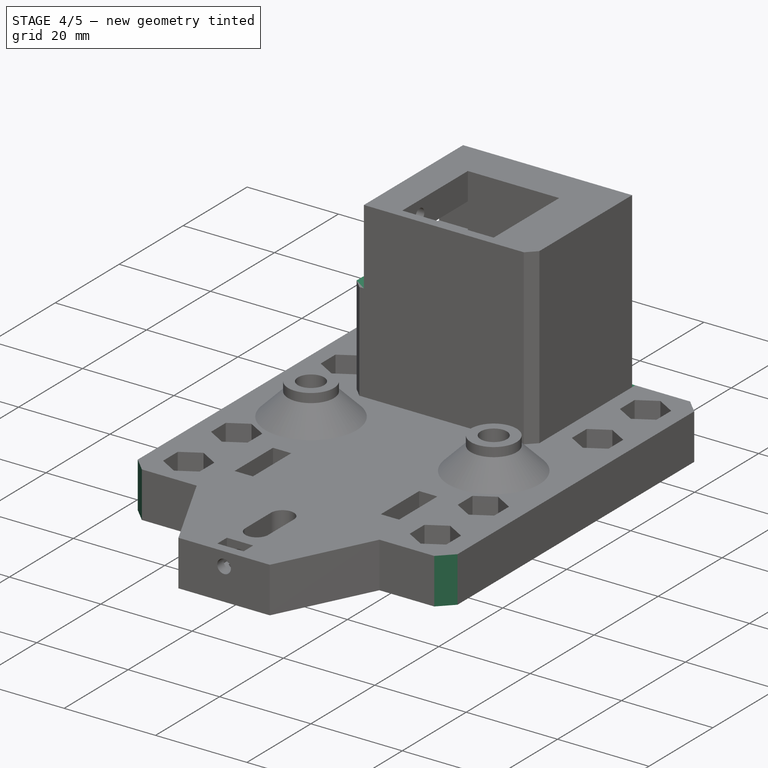
[diagram: stage 4 of 5 — iso view after this stage's code; geometry added in this stage tinted green]
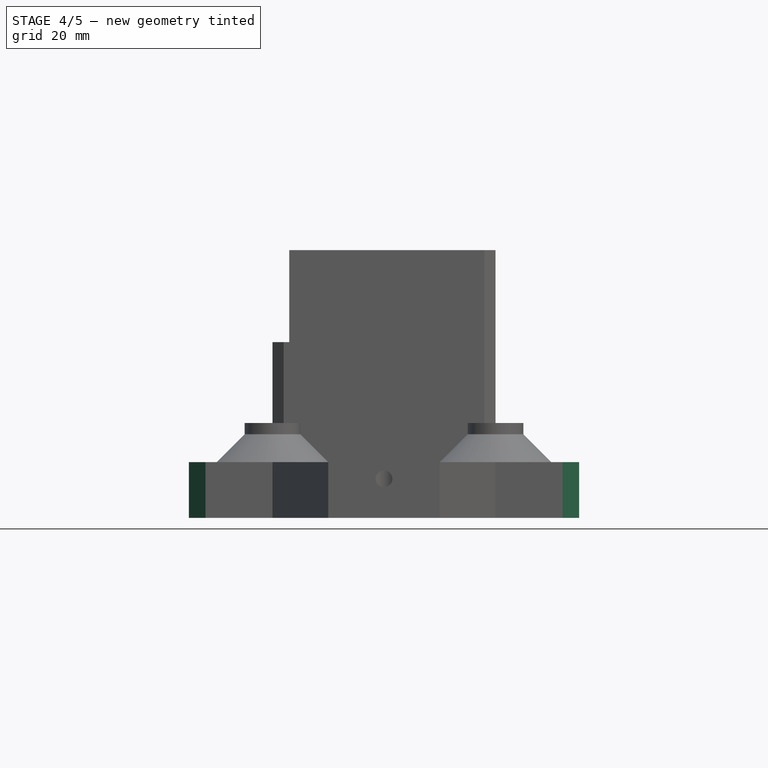
[diagram: stage 4 of 5 — front view after this stage's code; geometry added in this stage tinted green]
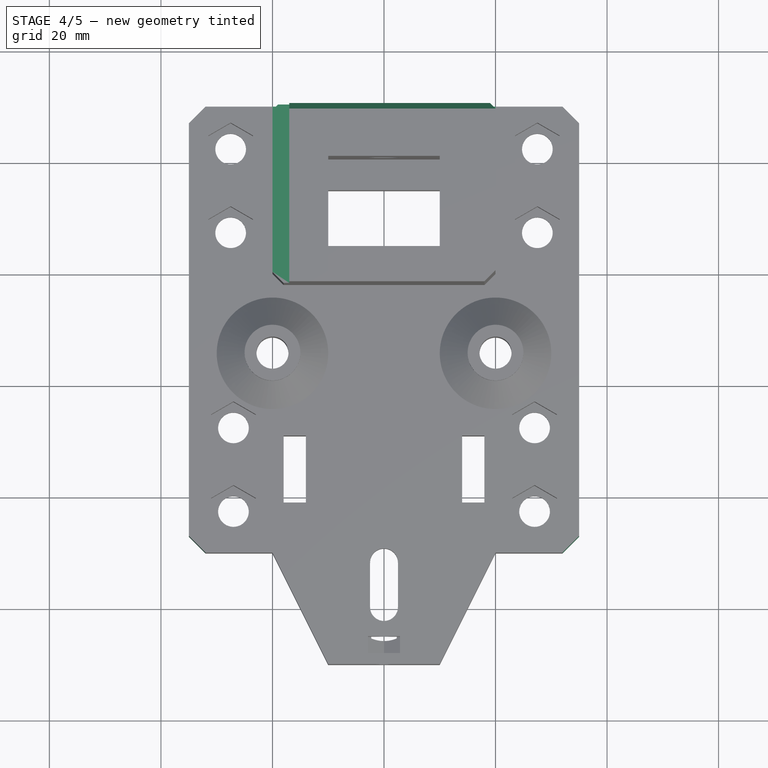
[diagram: stage 4 of 5 — top view after this stage's code; geometry added in this stage tinted green]
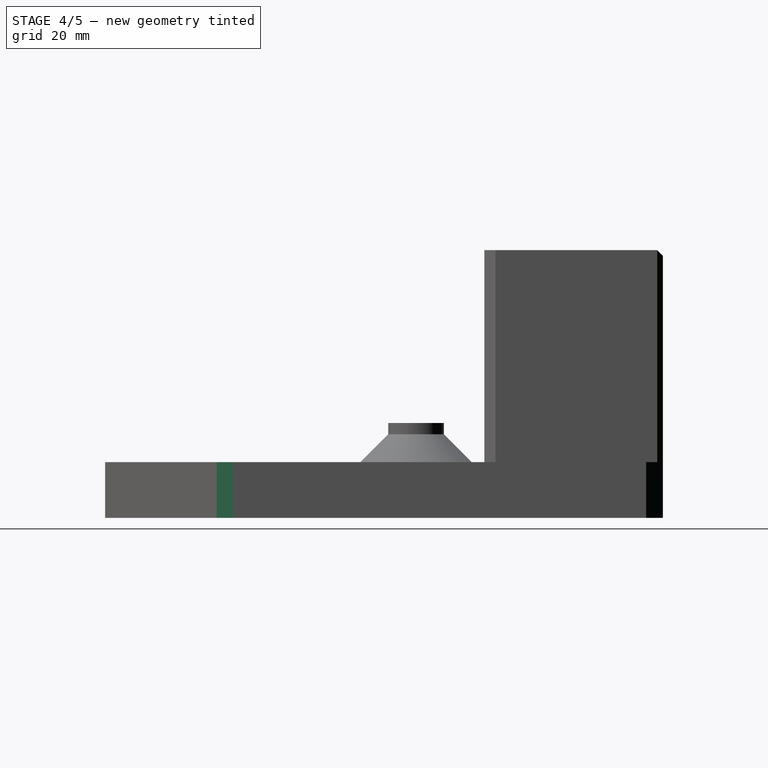
[diagram: stage 4 of 5 — right view after this stage's code; geometry added in this stage tinted green]
FEATURE [PartDesign::Plane] DatumPlane004
  Length = 117.088
  MapMode = 5
  Placement = pos=(-20,0,0) rot=(0.57735,-0.57735,-0.57735;2.0944rad)
  ResizeMode = 0
  Support = -> [Pocket005]
  Width = 90.088
FEATURE [Sketcher::SketchObject] Sketch010
  FullyConstrained = true
  MapMode = 5
  Placement = pos=(-20,0,0) rot=(0.57735,-0.57735,-0.57735;2.0944rad)
  Support = -> [DatumPlane004]
  sketch-geometry (4):
    g0: LineSegment StartX=5 StartY=48 StartZ=0 EndX=-30 EndY=48 EndZ=0
    g1: LineSegment StartX=-30 StartY=48 StartZ=0 EndX=-30 EndY=31.5 EndZ=0
    g2: LineSegment StartX=-30 StartY=31.5 StartZ=0 EndX=5 EndY=31.5 EndZ=0
    g3: LineSegment StartX=5 StartY=31.5 StartZ=0 EndX=5 EndY=48 EndZ=0
  constraints (12):
    c: Coincident(g0,g1)
    c: Coincident(g1,g2)
    c: Coincident(g2,g3)
    c: Coincident(g3,g0)
    c: Horizontal(g0)
    c: Horizontal(g2)
    c: Vertical(g1)
    c: Vertical(g3)
    c: DistanceX(g0,g0) = 35
    c: DistanceY(g1,g1) = 16.5
    c: DistanceY(g-1,g0) = 48
    c: DistanceX(g-1,g2) = 5
FEATURE [PartDesign::Pocket] Pocket006
  AllowMultiFace = false
  BaseFeature = -> Pocket005
  Length = 3
  Length2 = 100
  Profile = -> Sketch010
  Type = 0
FEATURE [PartDesign::Chamfer] Chamfer003
  Angle = 45
  Base = -> Pocket006 [Edge4,Edge19,Edge16,Edge128]
  BaseFeature = -> Pocket006
  ChamferType = 0
  FlipDirection = false
  Size = 3
  Size2 = 1
  SupportTransform = false
FEATURE [PartDesign::Chamfer] Chamfer004
  Angle = 45
  Base = -> Chamfer003 [Edge157]
  BaseFeature = -> Chamfer003
  ChamferType = 0
  FlipDirection = false
  Size = 2
  Size2 = 1
  SupportTransform = false
FEATURE [PartDesign::Chamfer] Chamfer005
  Angle = 45
  Base = -> Chamfer004 [Edge27,Edge29,Edge32]
  BaseFeature = -> Chamfer004
  ChamferType = 0
  FlipDirection = false
  Size = 1
  Size2 = 1
  SupportTransform = false
FEATURE [Part::Part2DObjectPython] ShapeString  label="PN"  # Draft 2D object (typed FeaturePython)
  AttachmentOffset = pos=(-19,3,0) rot=(0,0,1;0rad)
  FontFile = ../../lib/fonts/RobotoMono-VariableFont_weight.ttf
  MapMode = 5
  Placement = pos=(19,30,3) rot=(0,0.707107,0.707107;3.14159rad)
  Size = 5
  String = FDM-0005-02
  Support = -> [Chamfer005]
  Tracking = 0
FEATURE [PartDesign::Pocket] Pocket008
  BaseFeature = -> Chamfer005
  Length = 0.5
  Length2 = 100
  Profile = -> ShapeString
  Type = 0
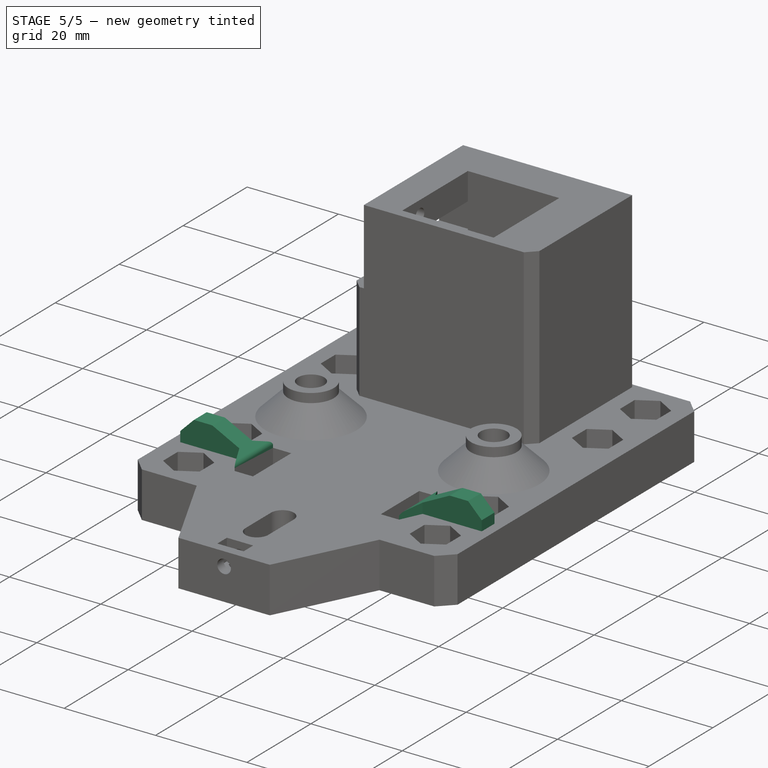
[diagram: stage 5 of 5 — iso view after this stage's code; geometry added in this stage tinted green]
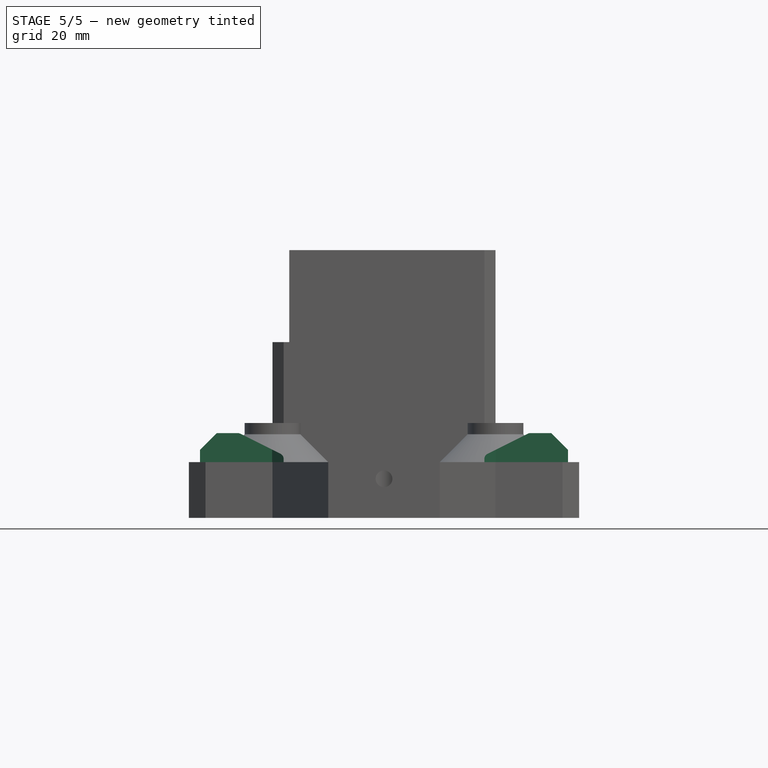
[diagram: stage 5 of 5 — front view after this stage's code; geometry added in this stage tinted green]
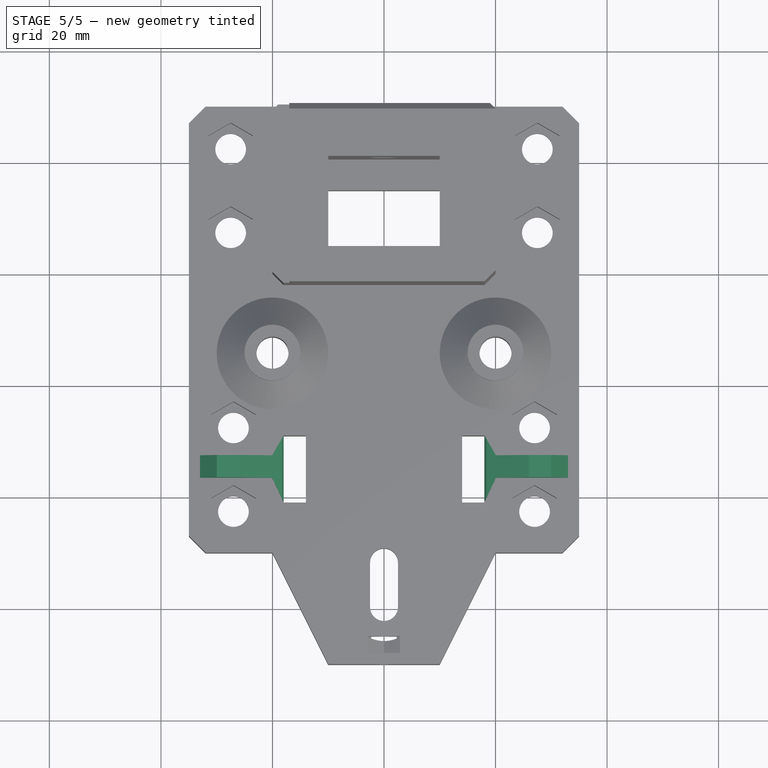
[diagram: stage 5 of 5 — top view after this stage's code; geometry added in this stage tinted green]
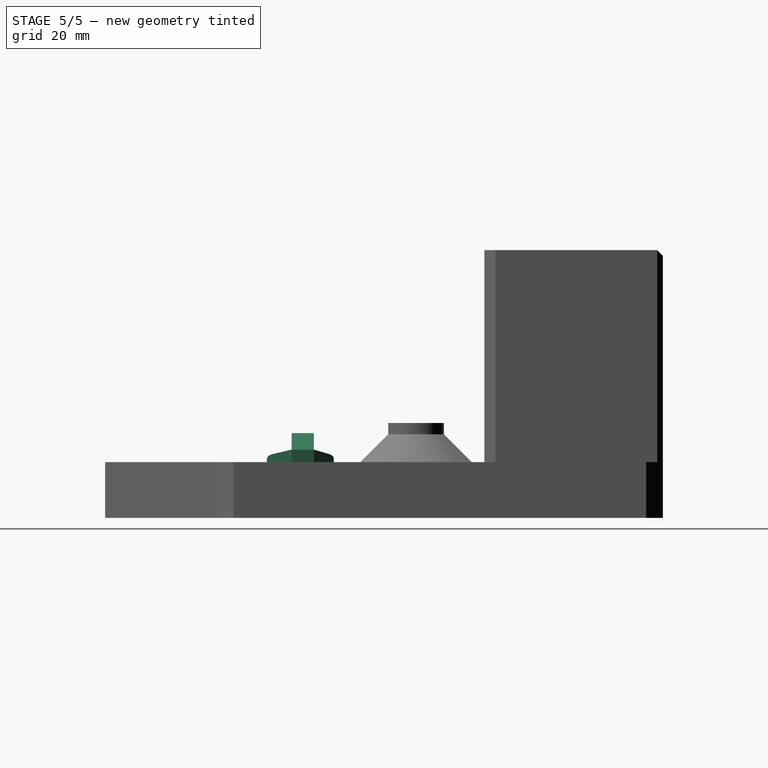
[diagram: stage 5 of 5 — right view after this stage's code; geometry added in this stage tinted green]
FEATURE [Sketcher::SketchObject] Sketch012
  FullyConstrained = true
  MapMode = 5
  Placement = pos=(0,0,10) rot=(0,0,1;0rad)
  Support = -> [DatumPlane]
  sketch-geometry (12):
    g0: LineSegment StartX=-33 StartY=-32.5744 StartZ=0 EndX=-33 EndY=-36.5744 EndZ=0
    g1: LineSegment StartX=-33 StartY=-36.5744 StartZ=0 EndX=-20.0637 EndY=-36.5744 EndZ=0
    g2: LineSegment StartX=-20.0637 StartY=-36.5744 StartZ=0 EndX=-18 EndY=-41 EndZ=0
    g3: LineSegment StartX=-18 StartY=-41 StartZ=0 EndX=-18 EndY=-29 EndZ=0
    g4: LineSegment StartX=-18 StartY=-29 StartZ=0 EndX=-20.0637 EndY=-32.5744 EndZ=0
    g5: LineSegment StartX=-20.0637 StartY=-32.5744 StartZ=0 EndX=-33 EndY=-32.5744 EndZ=0
    g6: LineSegment StartX=18 StartY=-29 StartZ=0 EndX=18 EndY=-41 EndZ=0
    g7: LineSegment StartX=18 StartY=-41 StartZ=0 EndX=20.0637 EndY=-36.5744 EndZ=0
    g8: LineSegment StartX=20.0637 StartY=-36.5744 StartZ=0 EndX=33 EndY=-36.5744 EndZ=0
    g9: LineSegment StartX=33 StartY=-36.5744 StartZ=0 EndX=33 EndY=-32.5744 EndZ=0
    g10: LineSegment StartX=33 StartY=-32.5744 StartZ=0 EndX=20.0637 EndY=-32.5744 EndZ=0
    g11: LineSegment StartX=20.0637 StartY=-32.5744 StartZ=0 EndX=18 EndY=-29 EndZ=0
  constraints (36):
    c: Vertical(g0)
    c: Coincident(g0,g1)
    c: Horizontal(g1)
    c: Coincident(g1,g2)
    c: Coincident(g2,g3)
    c: Vertical(g3)
    c: Coincident(g3,g4)
    c: Coincident(g4,g5)
    c: Coincident(g5,g0)
    c: Horizontal(g5)
    c: Angle(g4,g3) = 0.523599
    c: Angle(g3,g2) = 0.436332
    c: DistanceY(g3,g3) = 12
    c: DistanceY(g0,g0) = 4
    c: DistanceX(g3,g-1) = 18
    c: DistanceY(g3,g-1) = 29
    c: Equal(g5,g1)
    c: DistanceX(g0,g2) = 15
    c: Vertical(g6)
    c: Coincident(g6,g7)
    c: Coincident(g7,g8)
    c: Horizontal(g8)
    c: Coincident(g8,g9)
    c: Vertical(g9)
    c: Coincident(g9,g10)
    c: Horizontal(g10)
    c: Coincident(g10,g11)
    c: Coincident(g11,g6)
    c: DistanceY(g6,g6) = 12
    c: DistanceY(g9,g9) = 4
    c: DistanceY(g6,g-1) = 29
    c: DistanceX(g-1,g6) = 18
    c: Angle(g6,g11) = 0.523599
    c: Angle(g7,g6) = 0.436332
    c: Equal(g10,g8)
    c: DistanceX(g6,g9) = 15
FEATURE [PartDesign::Pad] Pad004
  BaseFeature = -> Pocket008
  Direction = (1,1,1)
  Length = 5.2
  Length2 = 100
  Profile = -> Sketch012
  Type = 0
FEATURE [PartDesign::Chamfer] Chamfer006
  Angle = 45
  Base = -> Pad004 [Edge1099,Edge1105]
  BaseFeature = -> Pad004
  ChamferType = 1
  FlipDirection = false
  Size = 4
  Size2 = 8
  SupportTransform = false
FEATURE [PartDesign::Fillet] Fillet001
  Base = -> Chamfer006 [Edge10,Edge6,Edge938,Edge940]
  BaseFeature = -> Chamfer006
  Radius = 1
  SupportTransform = false
FEATURE [PartDesign::Chamfer] Chamfer007
  Angle = 45
  Base = -> Fillet001 [Edge367,Edge420]
  BaseFeature = -> Fillet001
  ChamferType = 0
  FlipDirection = false
  Size = 3
  Size2 = 1
  SupportTransform = false
FEATURE [PartDesign::Plane] DatumPlane006  label="PrintPlane"
  Length = 86.7332
  MapMode = 5
  Placement = pos=(0,0,0) rot=(1,0,0;3.14159rad)
  ResizeMode = 0
  Support = -> [Chamfer007]
  Width = 116.733
FEATURE [PartDesign::Body] Body
  Group = -> [Sketch,Pad,DatumPlane,Sketch001,Pad001,Sketch002,Pocket,DatumPlane001,Sketch003,Pocket001,DatumPlane002,Sketch004,Sketch011,Pocket007,Pocket002,Sketch005,Pad002,Sketch006,Pad003,Chamfer,Fillet,DatumPlane003,Sketch007,Pocket003,Sketch008,Pocket004,Sketch009,Pocket005,DatumPlane004,Sketch010,Pocket006,Chamfer003,Chamfer004,Chamfer005,ShapeString,Pocket008,Sketch012,Pad004,Chamfer006,Fillet001,+2 more]
  Origin = -> Origin
  Tip = -> Chamfer007
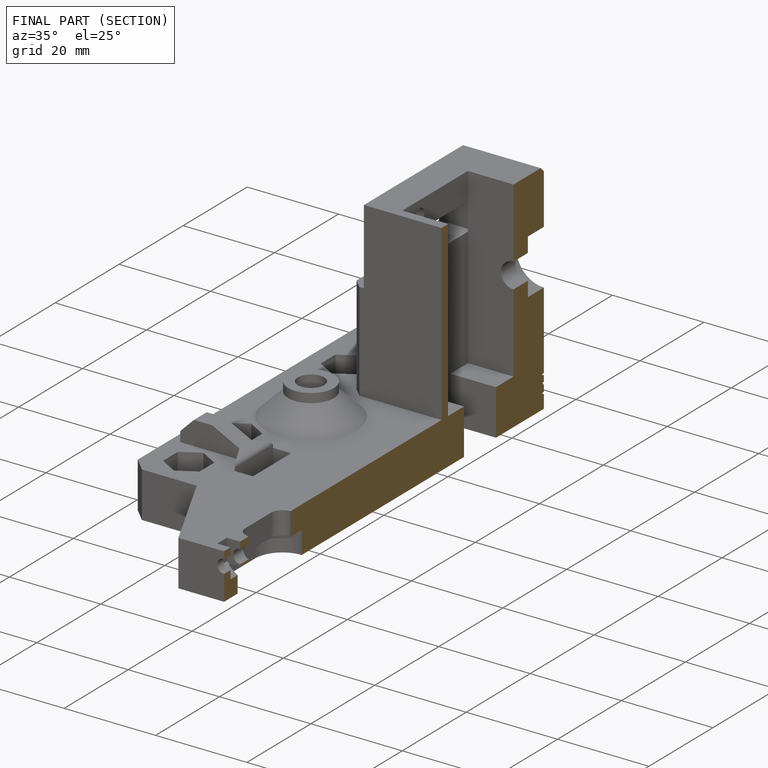
[diagram: finished part — half-section view (interior)]
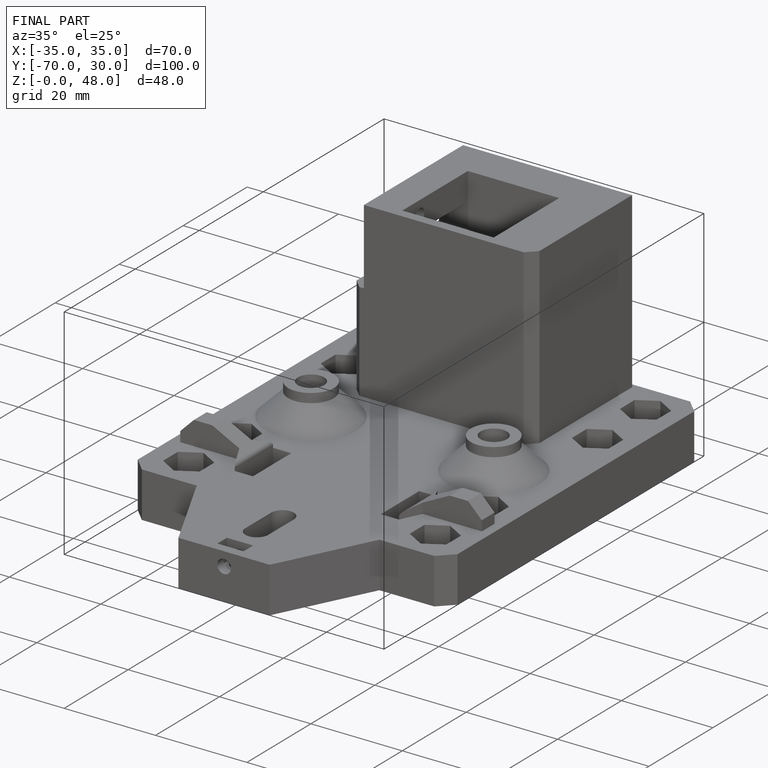
[diagram: finished part — iso view with bounding-box wireframe]
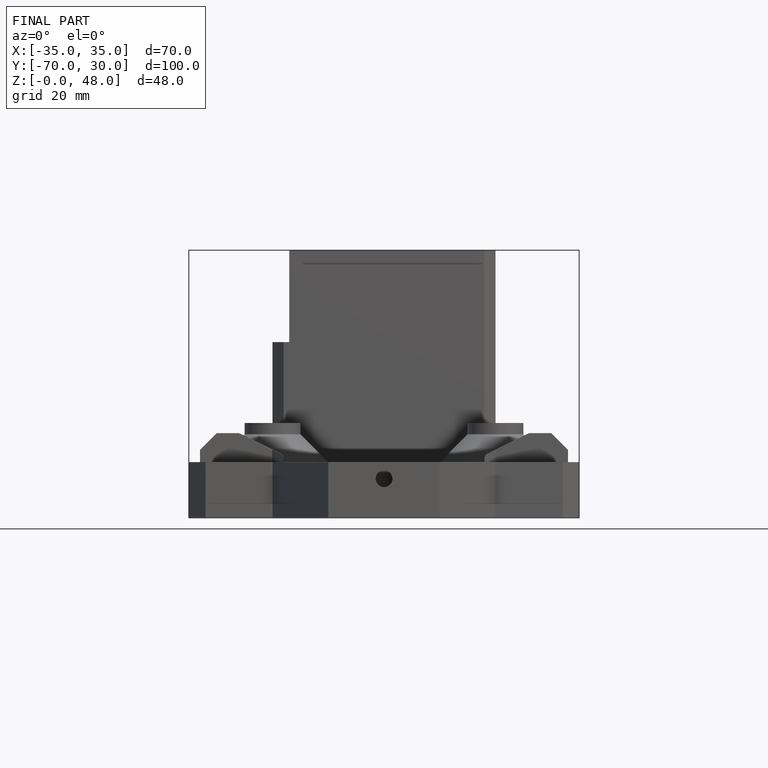
[diagram: finished part — front view with bounding-box wireframe]
